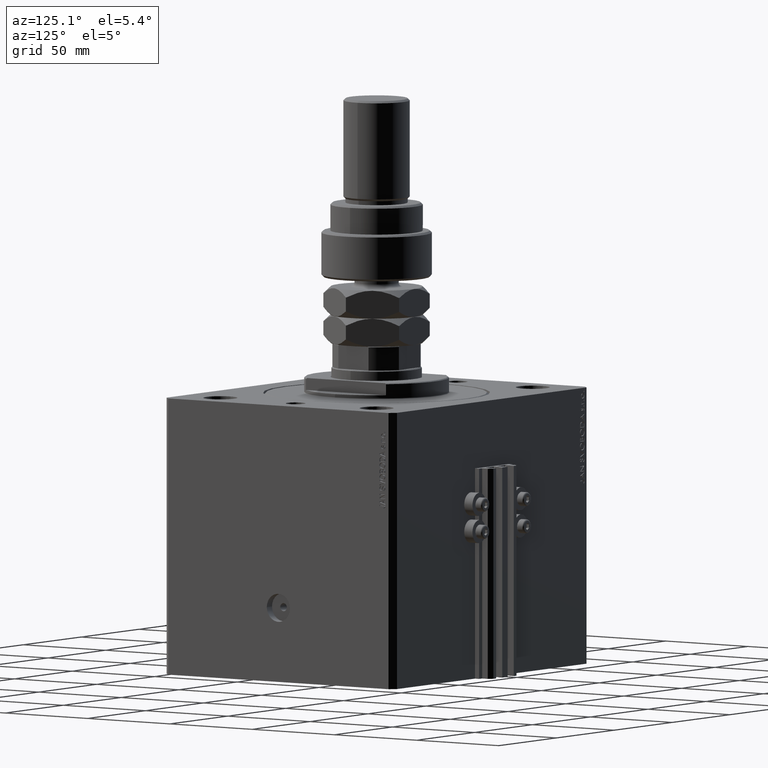
[diagram: clean part render]
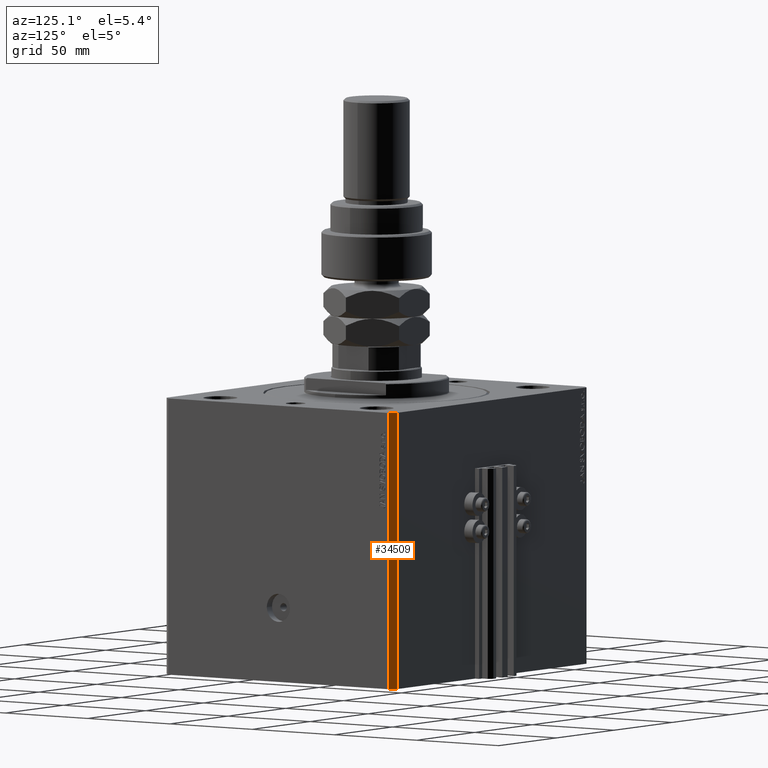
[diagram: same view with one face highlighted and labeled with its STEP entity id]
A machine part, auxiliary view. The second image highlights one B-rep face of the part: STEP entity #34509.
In plain terms, the highlighted planar face has unit normal (0.7071, 0.7071, 0).
Its self-contained STEP definition (entity closure, byte-faithful):
#10 = EDGE_LOOP ( 'NONE', ( #22735, #46056, #38976, #14513 ) ) ;
#3379 = VERTEX_POINT ( 'NONE', #10791 ) ;
#4460 = AXIS2_PLACEMENT_3D ( 'NONE', #33423, #7011, #33922 ) ;
#7011 = DIRECTION ( 'NONE',  ( 0.7071067811865588970, 0.7071067811865361374, -0.000000000000000000 ) ) ;
#7411 = VECTOR ( 'NONE', #10732, 1000.000000000000114 ) ;
#7631 = CARTESIAN_POINT ( 'NONE',  ( 85.00000000000052580, 66.99999999999995737, -138.0000000000000000 ) ) ;
#7817 = DIRECTION ( 'NONE',  ( 0.000000000000000000, 0.000000000000000000, 1.000000000000000000 ) ) ;
#10405 = CARTESIAN_POINT ( 'NONE',  ( 82.00000000000056843, 70.00000000000000000, 0.000000000000000000 ) ) ;
#10732 = DIRECTION ( 'NONE',  ( -0.7071067811865361374, 0.7071067811865588970, 0.000000000000000000 ) ) ;
#10791 = CARTESIAN_POINT ( 'NONE',  ( 85.00000000000052580, 66.99999999999995737, -138.0000000000000000 ) ) ;
#10979 = CARTESIAN_POINT ( 'NONE',  ( 85.00000000000052580, 66.99999999999995737, 0.000000000000000000 ) ) ;
#11361 = LINE ( 'NONE', #26835, #21213 ) ;
#12396 = LINE ( 'NONE', #23565, #42768 ) ;
#14354 = PLANE ( 'NONE',  #4460 ) ;
#14513 = ORIENTED_EDGE ( 'NONE', *, *, #14944, .T. ) ;
#14833 = VERTEX_POINT ( 'NONE', #10405 ) ;
#14944 = EDGE_CURVE ( 'NONE', #19778, #14833, #12396, .T. ) ;
#18298 = LINE ( 'NONE', #7631, #47171 ) ;
#19778 = VERTEX_POINT ( 'NONE', #39248 ) ;
#21213 = VECTOR ( 'NONE', #7817, 1000.000000000000000 ) ;
#21417 = EDGE_CURVE ( 'NONE', #39575, #14833, #34099, .T. ) ;
#22735 = ORIENTED_EDGE ( 'NONE', *, *, #21417, .F. ) ;
#23565 = CARTESIAN_POINT ( 'NONE',  ( 82.00000000000056843, 70.00000000000000000, -138.0000000000000000 ) ) ;
#25996 = CARTESIAN_POINT ( 'NONE',  ( 85.00000000000052580, 66.99999999999995737, 0.000000000000000000 ) ) ;
#26835 = CARTESIAN_POINT ( 'NONE',  ( 85.00000000000052580, 66.99999999999995737, -138.0000000000000000 ) ) ;
#27631 = DIRECTION ( 'NONE',  ( 0.000000000000000000, 0.000000000000000000, 1.000000000000000000 ) ) ;
#28828 = EDGE_CURVE ( 'NONE', #3379, #39575, #11361, .T. ) ;
#29346 = EDGE_CURVE ( 'NONE', #3379, #19778, #18298, .T. ) ;
#29591 = FACE_OUTER_BOUND ( 'NONE', #10, .T. ) ;
#33423 = CARTESIAN_POINT ( 'NONE',  ( 85.00000000000052580, 66.99999999999995737, -138.0000000000000000 ) ) ;
#33922 = DIRECTION ( 'NONE',  ( -0.7071067811865361374, 0.7071067811865588970, 0.000000000000000000 ) ) ;
#34099 = LINE ( 'NONE', #10979, #7411 ) ;
#34509 = ADVANCED_FACE ( 'NONE', ( #29591 ), #14354, .T. ) ;
#37346 = DIRECTION ( 'NONE',  ( -0.7071067811865361374, 0.7071067811865588970, 0.000000000000000000 ) ) ;
#38976 = ORIENTED_EDGE ( 'NONE', *, *, #29346, .T. ) ;
#39248 = CARTESIAN_POINT ( 'NONE',  ( 82.00000000000056843, 70.00000000000000000, -138.0000000000000000 ) ) ;
#39575 = VERTEX_POINT ( 'NONE', #25996 ) ;
#42768 = VECTOR ( 'NONE', #27631, 1000.000000000000000 ) ;
#46056 = ORIENTED_EDGE ( 'NONE', *, *, #28828, .F. ) ;
#47171 = VECTOR ( 'NONE', #37346, 1000.000000000000114 ) ;